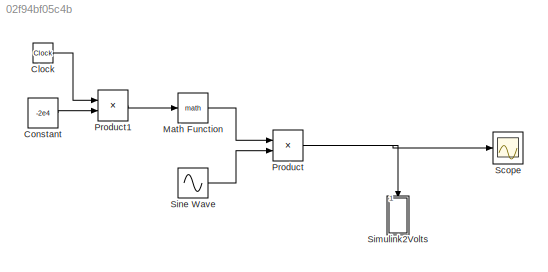
MODEL slx_02f94bf05c4b
KIND model
CONFIG AbsTol = auto
CONFIG EnableMultiTasking = off
CONFIG FixedStep = auto
CONFIG MaxStep = auto
CONFIG MinStep = auto
CONFIG RelTol = 1e-3
CONFIG SampleTimeConstraint = Unconstrained
CONFIG SolverName = VariableStepAuto
CONFIG StartTime = 0.0
CONFIG StopTime = .00015
BLOCK [Clock] Clock
BLOCK [Constant] Constant
  Value = -2e4
BLOCK [Math] Math Function
  Ports = [1, 1]
BLOCK [Product] Product
  Ports = [2, 1]
BLOCK [Product] Product1
  Ports = [2, 1]
BLOCK [Scope] Scope
  Floating = off
  NumInputPorts = 1
  Ports = [1]
  ScopeSpecificationString = Simulink.scopes.TimeScopeBlockCfg('CurrentConfiguration', extmgr.ConfigurationSet(extmgr.Configuration('Core','General UI',true),extmgr.Configuration('Core','Source UI',true),extmgr.Configuration('Sources','WiredSimulink',true),extmgr.Configuration('Visuals','Time Domain',true,'SerializedDisplays',{struct('MinYLimReal','-0.000011','MaxYLimReal','0.000011','YLabelReal','','MinYLimMag','0.000000','M...<+1335ch>
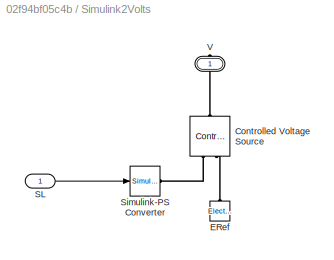
BLOCK [SubSystem] Simulink2Volts
  NameLocation = left
  Ports = [1, 0, 0, 0, 0, 0, 1]
  RequestExecContextInheritance = off
BLOCK [Reference] Simulink2Volts/Controlled Voltage Source  REF=fl_lib/Electrical/Electrical Sources/Controlled Voltage
Source
  NameLocation = right
  Ports = [0, 0, 0, 0, 0, 1, 2]
  SourceBlock = fl_lib/Electrical/Electrical Sources/Controlled Voltage\nSource
  SourceProductName = Foundation Library
  SourceType = Controlled Voltage\nSource
BLOCK [Reference] Simulink2Volts/ERef  REF=fl_lib/Electrical/Electrical Elements/Electrical Reference
  NameLocation = right
  Ports = [0, 0, 0, 0, 0, 1]
  SourceBlock = fl_lib/Electrical/Electrical Elements/Electrical Reference
  SourceProductName = Foundation Library
  SourceType = Electrical Reference
BLOCK [Inport] Simulink2Volts/SL
BLOCK [Reference] Simulink2Volts/Simulink-PS Converter  REF=nesl_utility/Simulink-PS
Converter
  Ports = [1, 0, 0, 0, 0, 0, 1]
  SourceBlock = nesl_utility/Simulink-PS\nConverter
  SourceProductName = Utilities
  SourceType = Simulink-PS\nConverter
BLOCK [PMIOPort] Simulink2Volts/V
  NameLocation = right
  Side = Right
BLOCK [Sin] Sine Wave
  Amplitude = 10e-6
  Frequency = 135383793
  Ports = [0, 1]
  SampleTime = 0
LINE Clock:1 -> Product1:1
LINE Constant:1 -> Product1:2
LINE Math Function:1 -> Product:1
LINE Product1:1 -> Math Function:1
NET Product:1 -> Scope:1, Simulink2Volts:1
LINE Simulink2Volts/SL:1 -> Simulink2Volts/Simulink-PS Converter:1
LINE Sine Wave:1 -> Product:2
PLINE Simulink2Volts/Controlled Voltage Source:LConn1 -- Simulink2Volts/V:RConn1
PLINE Simulink2Volts/Controlled Voltage Source:RConn1 -- Simulink2Volts/Simulink-PS Converter:RConn1
PLINE Simulink2Volts/Controlled Voltage Source:RConn2 -- Simulink2Volts/ERef:LConn1
note: NET lines group one-source signal fan-out (src -> all destinations, sorted); 1:1 wires keep LINE
